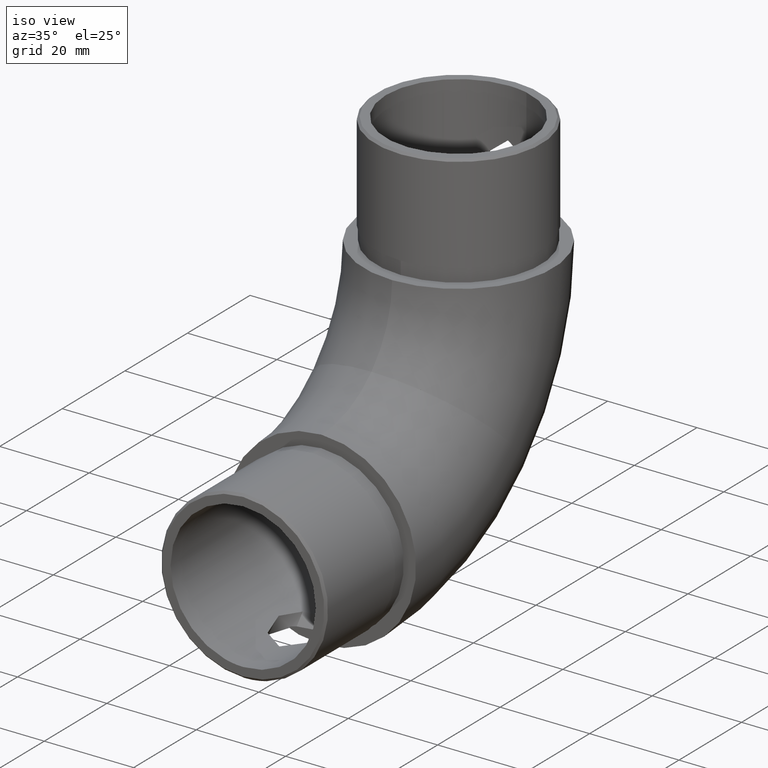
[diagram: clean part render]
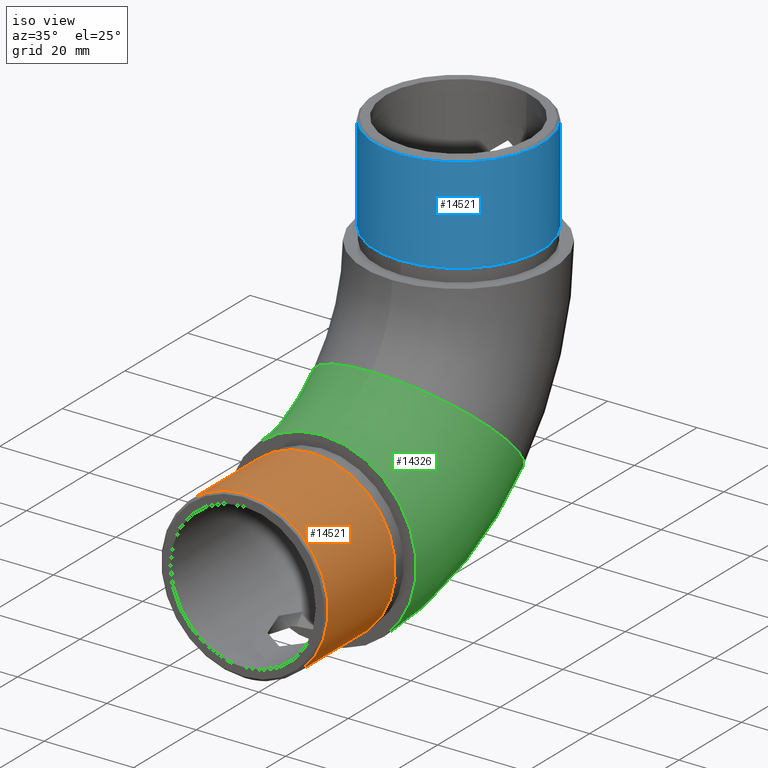
[diagram: same view with three faces highlighted in distinct colors, each labeled with its STEP entity id]
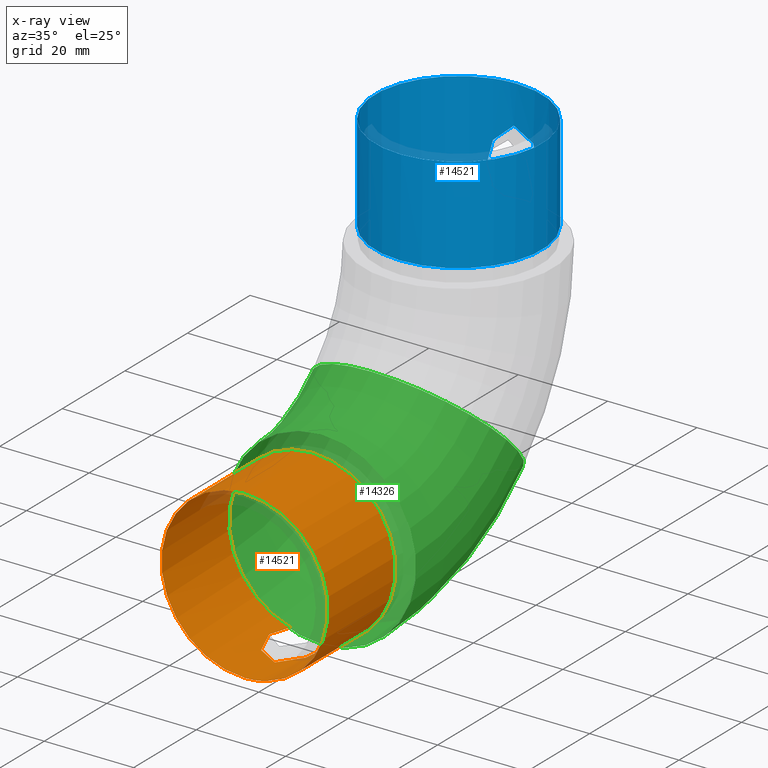
[diagram: x-ray of the same camera — body ghosted, the three highlighted faces saturated]
A machine part, iso view with three faces highlighted in distinct colors.
The next image is the same camera in x-ray (body ghosted, the three faces saturated) — at least one of them is partly hidden behind the body in this view.
Their STEP definitions:

[orange] entity #14521 — the highlighted cylindrical surface (bore or boss wall) has radius 18.65 mm, axis along (0, 1, 0).
#6 = VERTEX_POINT ( 'NONE', #4660 ) ;
#277 = DIRECTION ( 'NONE',  ( 0.0000000000000000000, 0.0000000000000000000, -1.000000000000000000 ) ) ;
#474 = CIRCLE ( 'NONE', #1757, 18.64999999999999900 ) ;
#774 = CARTESIAN_POINT ( 'NONE',  ( -5.790677185453956700, -9.461693139043250200, -17.72853038604039700 ) ) ;
#900 = CARTESIAN_POINT ( 'NONE',  ( -6.004849232121167700, -7.130516968725710400, -17.65685529642833300 ) ) ;
#958 = CARTESIAN_POINT ( 'NONE',  ( -5.942852978494347100, -6.134494595833762000, -17.67789175960240700 ) ) ;
#1152 = CARTESIAN_POINT ( 'NONE',  ( 5.626471513153692400, -10.09433060045608400, -17.78121767667432400 ) ) ;
#1272 = CARTESIAN_POINT ( 'NONE',  ( 5.841453206432585300, -5.474103332511540500, -17.71165676666914400 ) ) ;
#1337 = CARTESIAN_POINT ( 'NONE',  ( 4.321121082630329900, -13.13558257604128000, -18.14556495148407900 ) ) ;
#1757 = AXIS2_PLACEMENT_3D ( 'NONE', #14232, #17078, #277 ) ;
#2103 = DIRECTION ( 'NONE',  ( -0.0000000000000000000, 1.000000000000000000, 0.0000000000000000000 ) ) ;
#2236 = CIRCLE ( 'NONE', #10883, 18.64999999999999900 ) ;
#2255 = CARTESIAN_POINT ( 'NONE',  ( -5.244792993793314700, -3.569108964310377700, -17.90108790007638400 ) ) ;
#2318 = CARTESIAN_POINT ( 'NONE',  ( -4.473373668072879300, -12.85825524376494800, -18.10631985227465500 ) ) ;
#2382 = CARTESIAN_POINT ( 'NONE',  ( -5.974707160370271300, -6.465868964634419000, -17.66707750612237900 ) ) ;
#2697 = CARTESIAN_POINT ( 'NONE',  ( 5.942950261718086900, -6.135252937085535800, -17.67785912292502800 ) ) ;
#2744 = DIRECTION ( 'NONE',  ( 0.0000000000000000000, 1.000000000000000000, 0.0000000000000000000 ) ) ;
#3606 = CARTESIAN_POINT ( 'NONE',  ( -4.939913929214207600, -11.98306957947809300, -17.98440236260606900 ) ) ;
#4029 = CARTESIAN_POINT ( 'NONE',  ( 1.327159189066079200, -15.68645720442835100, -18.60337763575124000 ) ) ;
#4095 = CARTESIAN_POINT ( 'NONE',  ( 1.168316778614997100, -15.73961627757602200, -18.61407518019354200 ) ) ;
#4158 = CARTESIAN_POINT ( 'NONE',  ( 5.984028909698522200, -8.121099836711469100, -17.66419976884776900 ) ) ;
#4660 = CARTESIAN_POINT ( 'NONE',  ( 0.0000000000000000000, -24.50000000000001100, -18.64999999999999900 ) ) ;
#5083 = CARTESIAN_POINT ( 'NONE',  ( -3.706481937885172800, -13.94311861113800800, -18.27941630987184100 ) ) ;
#5262 = CARTESIAN_POINT ( 'NONE',  ( -5.771066988118038300, -5.142613042321402300, -17.73488632475578400 ) ) ;
#5321 = CARTESIAN_POINT ( 'NONE',  ( 5.227114922649276400, -11.35563188723252100, -17.90380816657120300 ) ) ;
#5450 = CARTESIAN_POINT ( 'NONE',  ( 2.511559563170317600, -15.06670748850021500, -18.48197263604583500 ) ) ;
#5537 = EDGE_CURVE ( 'NONE', #17546, #16899, #11127, .T. ) ;
#5561 = CARTESIAN_POINT ( 'NONE',  ( 3.030121264607642800, -14.64888919951121700, -18.40406501511748900 ) ) ;
#6587 = CARTESIAN_POINT ( 'NONE',  ( -4.891148747746965100, -3.000000000000000000, -17.99719878001611000 ) ) ;
#6700 = CARTESIAN_POINT ( 'NONE',  ( 2.236238191977251200, -15.25287960215611200, -18.51782933698246600 ) ) ;
#6714 = CARTESIAN_POINT ( 'NONE',  ( 4.891148747746969500, -3.000000000000000000, -17.99719878001610600 ) ) ;
#6826 = CARTESIAN_POINT ( 'NONE',  ( 5.501612020996431000, -4.179380303287336700, -17.82106395152606000 ) ) ;
#6888 = CARTESIAN_POINT ( 'NONE',  ( 1.793017266422567400, -15.48957302178017900, -18.56420359814896400 ) ) ;
#7854 = CARTESIAN_POINT ( 'NONE',  ( -5.324355061338476200, -11.05829143811324800, -17.87416200710210700 ) ) ;
#8036 = CARTESIAN_POINT ( 'NONE',  ( -1.622609117718887300, -15.57845428872802500, -18.58165056250563700 ) ) ;
#8102 = CARTESIAN_POINT ( 'NONE',  ( 5.974669325527080400, -6.466000420006295700, -17.66709028131080600 ) ) ;
#8544 = FACE_OUTER_BOUND ( 'NONE', #16681, .T. ) ;
#8564 = CARTESIAN_POINT ( 'NONE',  ( -4.891148747746965100, -3.000000000000000000, -17.99719878001611000 ) ) ;
#9326 = CARTESIAN_POINT ( 'NONE',  ( -5.205048450816677900, -11.37235602774064000, -17.90946533520211800 ) ) ;
#9388 = CARTESIAN_POINT ( 'NONE',  ( -5.501390394610129200, -4.178630456191827500, -17.82113442684032400 ) ) ;
#9451 = CARTESIAN_POINT ( 'NONE',  ( 6.019819766360434700, -7.458699042115691600, -17.65177838661190500 ) ) ;
#9512 = CARTESIAN_POINT ( 'NONE',  ( 5.771010737528315300, -5.142433164012434300, -17.73490411211239600 ) ) ;
#9934 = EDGE_LOOP ( 'NONE', ( #15423, #11074 ) ) ;
#9970 = ORIENTED_EDGE ( 'NONE', *, *, #13173, .T. ) ;
#10332 = DIRECTION ( 'NONE',  ( 0.0000000000000000000, 0.0000000000000000000, 1.000000000000000000 ) ) ;
#10538 = CARTESIAN_POINT ( 'NONE',  ( -4.793996505410635900, -12.28044542825460200, -18.02408078303007200 ) ) ;
#10857 = CARTESIAN_POINT ( 'NONE',  ( -1.311677552847934100, -15.70319985992123600, -18.60670899148463100 ) ) ;
#10883 = AXIS2_PLACEMENT_3D ( 'NONE', #11096, #2744, #12491 ) ;
#10922 = CARTESIAN_POINT ( 'NONE',  ( 0.3424592632891293500, -15.91594999639419900, -18.64984796656920800 ) ) ;
#10984 = CARTESIAN_POINT ( 'NONE',  ( 5.841308768002274800, -9.115509448016615200, -17.71169460394254000 ) ) ;
#11074 = ORIENTED_EDGE ( 'NONE', *, *, #14419, .T. ) ;
#11096 = CARTESIAN_POINT ( 'NONE',  ( 0.0000000000000000000, -24.50000000000001100, 0.0000000000000000000 ) ) ;
#11127 = B_SPLINE_CURVE_WITH_KNOTS ( 'NONE', 3,
 ( #6587, #2255, #9388, #5262, #17520, #958, #2382, #900, #14999, #16389, #12007, #774, #17651, #7854, #9326, #3606, #10538, #2318, #13405, #13346, #5083, #14810, #16200, #15126, #15248, #8036, #10857, #18014, #12380, #10922, #16447, #4095, #4029, #13778, #6888, #6700, #5450, #5561, #17770, #15189, #1337, #12316, #5321, #13836, #1152, #17836, #10984, #4158, #9451, #8102, #2697, #1272, #9512, #6826, #15309, #17893 ),
 .UNSPECIFIED., .F., .F.,
 ( 4, 2, 2, 2, 2, 2, 2, 2, 2, 2, 2, 2, 2, 2, 2, 2, 2, 2, 2, 2, 2, 2, 2, 2, 2, 2, 2, 4 ),
 ( 8.673617379884035500E-019, 0.001997902321562581900, 0.002996853482343870400, 0.003995804643125159400, 0.004994755803906450100, 0.005993706964687741700, 0.007991609286250325700, 0.008990560447031618200, 0.009989511607812910600, 0.01098846276859420000, 0.01198741392937549200, 0.01298636509015678500, 0.01398531625093807700, 0.01498426741171936900, 0.01598321857250066200, 0.01698216973328195100, 0.01748164531367259500, 0.01798112089406324300, 0.01898007205484453200, 0.01997902321562582500, 0.02197692553718841300, 0.02397482785875099800, 0.02497377901953228700, 0.02597273018031357900, 0.02797063250187616800, 0.02896958366265746000, 0.02996853482343875600, 0.03196643714500135200 ),
 .UNSPECIFIED. ) ;
#11177 = CYLINDRICAL_SURFACE ( 'NONE', #16367, 18.64999999999999900 ) ;
#12007 = CARTESIAN_POINT ( 'NONE',  ( -5.934650094995523000, -8.468332549562660500, -17.68063873927334100 ) ) ;
#12316 = CARTESIAN_POINT ( 'NONE',  ( 4.966799831345980500, -11.96598750024360800, -17.97955823302178000 ) ) ;
#12380 = CARTESIAN_POINT ( 'NONE',  ( -0.3256949123708592400, -15.91742048633220500, -18.65014826609198200 ) ) ;
#12491 = DIRECTION ( 'NONE',  ( 0.0000000000000000000, 0.0000000000000000000, -1.000000000000000000 ) ) ;
#13173 = EDGE_CURVE ( 'NONE', #6, #6, #2236, .T. ) ;
#13346 = CARTESIAN_POINT ( 'NONE',  ( -3.916048041116508800, -13.68030412546068300, -18.23528283451398500 ) ) ;
#13405 = CARTESIAN_POINT ( 'NONE',  ( -4.298703401610388200, -13.13870838259719800, -18.14888760723467000 ) ) ;
#13778 = CARTESIAN_POINT ( 'NONE',  ( 1.639286992822468500, -15.56161133611012900, -18.57847542525098900 ) ) ;
#13836 = CARTESIAN_POINT ( 'NONE',  ( 5.536797659209151200, -10.41334544233649200, -17.80949230048310700 ) ) ;
#14232 = CARTESIAN_POINT ( 'NONE',  ( 0.0000000000000000000, -3.000000000000000000, 0.0000000000000000000 ) ) ;
#14419 = EDGE_CURVE ( 'NONE', #16899, #17546, #474, .T. ) ;
#14521 = ADVANCED_FACE ( 'NONE', ( #8544, #15528 ), #11177, .T. ) ;
#14810 = CARTESIAN_POINT ( 'NONE',  ( -3.255982860875288300, -14.43387630998137000, -18.36501142376894100 ) ) ;
#14999 = CARTESIAN_POINT ( 'NONE',  ( -6.003118142627629400, -7.463791553186373700, -17.65744639434936000 ) ) ;
#15126 = CARTESIAN_POINT ( 'NONE',  ( -2.494993969129667200, -15.07854185179002600, -18.48422687191152000 ) ) ;
#15189 = CARTESIAN_POINT ( 'NONE',  ( 3.945214318237066900, -13.67963337675785800, -18.23362882605266200 ) ) ;
#15248 = CARTESIAN_POINT ( 'NONE',  ( -2.213088109873943700, -15.26720571701756600, -18.52060579446322900 ) ) ;
#15309 = CARTESIAN_POINT ( 'NONE',  ( 5.245210662980538200, -3.569781106671588800, -17.90097438896017600 ) ) ;
#15423 = ORIENTED_EDGE ( 'NONE', *, *, #5537, .T. ) ;
#15528 = FACE_OUTER_BOUND ( 'NONE', #9934, .T. ) ;
#16200 = CARTESIAN_POINT ( 'NONE',  ( -3.015106288482269000, -14.66241088441646500, -18.40654155531244700 ) ) ;
#16367 = AXIS2_PLACEMENT_3D ( 'NONE', #17376, #2103, #10332 ) ;
#16389 = CARTESIAN_POINT ( 'NONE',  ( -5.968159917496067600, -8.132122197835231600, -17.66929279294617000 ) ) ;
#16447 = CARTESIAN_POINT ( 'NONE',  ( 0.6828872220122790300, -15.86945999886565200, -18.64031117439767000 ) ) ;
#16681 = EDGE_LOOP ( 'NONE', ( #9970 ) ) ;
#16899 = VERTEX_POINT ( 'NONE', #6714 ) ;
#17078 = DIRECTION ( 'NONE',  ( 0.0000000000000000000, -1.000000000000000000, 0.0000000000000000000 ) ) ;
#17376 = CARTESIAN_POINT ( 'NONE',  ( 0.0000000000000000000, -24.99999999999999600, 0.0000000000000000000 ) ) ;
#17520 = CARTESIAN_POINT ( 'NONE',  ( -5.841398270015790900, -5.473870305524673800, -17.71167481745513300 ) ) ;
#17546 = VERTEX_POINT ( 'NONE', #8564 ) ;
#17651 = CARTESIAN_POINT ( 'NONE',  ( -5.637763792374252100, -10.10895977340000400, -17.77880244906071300 ) ) ;
#17770 = CARTESIAN_POINT ( 'NONE',  ( 3.274160085759045800, -14.41569064057777200, -18.36176012201969600 ) ) ;
#17836 = CARTESIAN_POINT ( 'NONE',  ( 5.778615086907725700, -9.446293287436542800, -17.73235718766593300 ) ) ;
#17893 = CARTESIAN_POINT ( 'NONE',  ( 4.891148747746969500, -3.000000000000000000, -17.99719878001610600 ) ) ;
#18014 = CARTESIAN_POINT ( 'NONE',  ( -0.6564894460998186300, -15.87445407927672000, -18.64132879125303800 ) ) ;

[blue] entity #14521 — the highlighted cylindrical surface (bore or boss wall) has radius 18.65 mm, axis along (0, -0, -1).
#6 = VERTEX_POINT ( 'NONE', #4660 ) ;
#277 = DIRECTION ( 'NONE',  ( 0.0000000000000000000, 0.0000000000000000000, -1.000000000000000000 ) ) ;
#474 = CIRCLE ( 'NONE', #1757, 18.64999999999999900 ) ;
#774 = CARTESIAN_POINT ( 'NONE',  ( -5.790677185453956700, -9.461693139043250200, -17.72853038604039700 ) ) ;
#900 = CARTESIAN_POINT ( 'NONE',  ( -6.004849232121167700, -7.130516968725710400, -17.65685529642833300 ) ) ;
#958 = CARTESIAN_POINT ( 'NONE',  ( -5.942852978494347100, -6.134494595833762000, -17.67789175960240700 ) ) ;
#1152 = CARTESIAN_POINT ( 'NONE',  ( 5.626471513153692400, -10.09433060045608400, -17.78121767667432400 ) ) ;
#1272 = CARTESIAN_POINT ( 'NONE',  ( 5.841453206432585300, -5.474103332511540500, -17.71165676666914400 ) ) ;
#1337 = CARTESIAN_POINT ( 'NONE',  ( 4.321121082630329900, -13.13558257604128000, -18.14556495148407900 ) ) ;
#1757 = AXIS2_PLACEMENT_3D ( 'NONE', #14232, #17078, #277 ) ;
#2103 = DIRECTION ( 'NONE',  ( -0.0000000000000000000, 1.000000000000000000, 0.0000000000000000000 ) ) ;
#2236 = CIRCLE ( 'NONE', #10883, 18.64999999999999900 ) ;
#2255 = CARTESIAN_POINT ( 'NONE',  ( -5.244792993793314700, -3.569108964310377700, -17.90108790007638400 ) ) ;
#2318 = CARTESIAN_POINT ( 'NONE',  ( -4.473373668072879300, -12.85825524376494800, -18.10631985227465500 ) ) ;
#2382 = CARTESIAN_POINT ( 'NONE',  ( -5.974707160370271300, -6.465868964634419000, -17.66707750612237900 ) ) ;
#2697 = CARTESIAN_POINT ( 'NONE',  ( 5.942950261718086900, -6.135252937085535800, -17.67785912292502800 ) ) ;
#2744 = DIRECTION ( 'NONE',  ( 0.0000000000000000000, 1.000000000000000000, 0.0000000000000000000 ) ) ;
#3606 = CARTESIAN_POINT ( 'NONE',  ( -4.939913929214207600, -11.98306957947809300, -17.98440236260606900 ) ) ;
#4029 = CARTESIAN_POINT ( 'NONE',  ( 1.327159189066079200, -15.68645720442835100, -18.60337763575124000 ) ) ;
#4095 = CARTESIAN_POINT ( 'NONE',  ( 1.168316778614997100, -15.73961627757602200, -18.61407518019354200 ) ) ;
#4158 = CARTESIAN_POINT ( 'NONE',  ( 5.984028909698522200, -8.121099836711469100, -17.66419976884776900 ) ) ;
#4660 = CARTESIAN_POINT ( 'NONE',  ( 0.0000000000000000000, -24.50000000000001100, -18.64999999999999900 ) ) ;
#5083 = CARTESIAN_POINT ( 'NONE',  ( -3.706481937885172800, -13.94311861113800800, -18.27941630987184100 ) ) ;
#5262 = CARTESIAN_POINT ( 'NONE',  ( -5.771066988118038300, -5.142613042321402300, -17.73488632475578400 ) ) ;
#5321 = CARTESIAN_POINT ( 'NONE',  ( 5.227114922649276400, -11.35563188723252100, -17.90380816657120300 ) ) ;
#5450 = CARTESIAN_POINT ( 'NONE',  ( 2.511559563170317600, -15.06670748850021500, -18.48197263604583500 ) ) ;
#5537 = EDGE_CURVE ( 'NONE', #17546, #16899, #11127, .T. ) ;
#5561 = CARTESIAN_POINT ( 'NONE',  ( 3.030121264607642800, -14.64888919951121700, -18.40406501511748900 ) ) ;
#6587 = CARTESIAN_POINT ( 'NONE',  ( -4.891148747746965100, -3.000000000000000000, -17.99719878001611000 ) ) ;
#6700 = CARTESIAN_POINT ( 'NONE',  ( 2.236238191977251200, -15.25287960215611200, -18.51782933698246600 ) ) ;
#6714 = CARTESIAN_POINT ( 'NONE',  ( 4.891148747746969500, -3.000000000000000000, -17.99719878001610600 ) ) ;
#6826 = CARTESIAN_POINT ( 'NONE',  ( 5.501612020996431000, -4.179380303287336700, -17.82106395152606000 ) ) ;
#6888 = CARTESIAN_POINT ( 'NONE',  ( 1.793017266422567400, -15.48957302178017900, -18.56420359814896400 ) ) ;
#7854 = CARTESIAN_POINT ( 'NONE',  ( -5.324355061338476200, -11.05829143811324800, -17.87416200710210700 ) ) ;
#8036 = CARTESIAN_POINT ( 'NONE',  ( -1.622609117718887300, -15.57845428872802500, -18.58165056250563700 ) ) ;
#8102 = CARTESIAN_POINT ( 'NONE',  ( 5.974669325527080400, -6.466000420006295700, -17.66709028131080600 ) ) ;
#8544 = FACE_OUTER_BOUND ( 'NONE', #16681, .T. ) ;
#8564 = CARTESIAN_POINT ( 'NONE',  ( -4.891148747746965100, -3.000000000000000000, -17.99719878001611000 ) ) ;
#9326 = CARTESIAN_POINT ( 'NONE',  ( -5.205048450816677900, -11.37235602774064000, -17.90946533520211800 ) ) ;
#9388 = CARTESIAN_POINT ( 'NONE',  ( -5.501390394610129200, -4.178630456191827500, -17.82113442684032400 ) ) ;
#9451 = CARTESIAN_POINT ( 'NONE',  ( 6.019819766360434700, -7.458699042115691600, -17.65177838661190500 ) ) ;
#9512 = CARTESIAN_POINT ( 'NONE',  ( 5.771010737528315300, -5.142433164012434300, -17.73490411211239600 ) ) ;
#9934 = EDGE_LOOP ( 'NONE', ( #15423, #11074 ) ) ;
#9970 = ORIENTED_EDGE ( 'NONE', *, *, #13173, .T. ) ;
#10332 = DIRECTION ( 'NONE',  ( 0.0000000000000000000, 0.0000000000000000000, 1.000000000000000000 ) ) ;
#10538 = CARTESIAN_POINT ( 'NONE',  ( -4.793996505410635900, -12.28044542825460200, -18.02408078303007200 ) ) ;
#10857 = CARTESIAN_POINT ( 'NONE',  ( -1.311677552847934100, -15.70319985992123600, -18.60670899148463100 ) ) ;
#10883 = AXIS2_PLACEMENT_3D ( 'NONE', #11096, #2744, #12491 ) ;
#10922 = CARTESIAN_POINT ( 'NONE',  ( 0.3424592632891293500, -15.91594999639419900, -18.64984796656920800 ) ) ;
#10984 = CARTESIAN_POINT ( 'NONE',  ( 5.841308768002274800, -9.115509448016615200, -17.71169460394254000 ) ) ;
#11074 = ORIENTED_EDGE ( 'NONE', *, *, #14419, .T. ) ;
#11096 = CARTESIAN_POINT ( 'NONE',  ( 0.0000000000000000000, -24.50000000000001100, 0.0000000000000000000 ) ) ;
#11127 = B_SPLINE_CURVE_WITH_KNOTS ( 'NONE', 3,
 ( #6587, #2255, #9388, #5262, #17520, #958, #2382, #900, #14999, #16389, #12007, #774, #17651, #7854, #9326, #3606, #10538, #2318, #13405, #13346, #5083, #14810, #16200, #15126, #15248, #8036, #10857, #18014, #12380, #10922, #16447, #4095, #4029, #13778, #6888, #6700, #5450, #5561, #17770, #15189, #1337, #12316, #5321, #13836, #1152, #17836, #10984, #4158, #9451, #8102, #2697, #1272, #9512, #6826, #15309, #17893 ),
 .UNSPECIFIED., .F., .F.,
 ( 4, 2, 2, 2, 2, 2, 2, 2, 2, 2, 2, 2, 2, 2, 2, 2, 2, 2, 2, 2, 2, 2, 2, 2, 2, 2, 2, 4 ),
 ( 8.673617379884035500E-019, 0.001997902321562581900, 0.002996853482343870400, 0.003995804643125159400, 0.004994755803906450100, 0.005993706964687741700, 0.007991609286250325700, 0.008990560447031618200, 0.009989511607812910600, 0.01098846276859420000, 0.01198741392937549200, 0.01298636509015678500, 0.01398531625093807700, 0.01498426741171936900, 0.01598321857250066200, 0.01698216973328195100, 0.01748164531367259500, 0.01798112089406324300, 0.01898007205484453200, 0.01997902321562582500, 0.02197692553718841300, 0.02397482785875099800, 0.02497377901953228700, 0.02597273018031357900, 0.02797063250187616800, 0.02896958366265746000, 0.02996853482343875600, 0.03196643714500135200 ),
 .UNSPECIFIED. ) ;
#11177 = CYLINDRICAL_SURFACE ( 'NONE', #16367, 18.64999999999999900 ) ;
#12007 = CARTESIAN_POINT ( 'NONE',  ( -5.934650094995523000, -8.468332549562660500, -17.68063873927334100 ) ) ;
#12316 = CARTESIAN_POINT ( 'NONE',  ( 4.966799831345980500, -11.96598750024360800, -17.97955823302178000 ) ) ;
#12380 = CARTESIAN_POINT ( 'NONE',  ( -0.3256949123708592400, -15.91742048633220500, -18.65014826609198200 ) ) ;
#12491 = DIRECTION ( 'NONE',  ( 0.0000000000000000000, 0.0000000000000000000, -1.000000000000000000 ) ) ;
#13173 = EDGE_CURVE ( 'NONE', #6, #6, #2236, .T. ) ;
#13346 = CARTESIAN_POINT ( 'NONE',  ( -3.916048041116508800, -13.68030412546068300, -18.23528283451398500 ) ) ;
#13405 = CARTESIAN_POINT ( 'NONE',  ( -4.298703401610388200, -13.13870838259719800, -18.14888760723467000 ) ) ;
#13778 = CARTESIAN_POINT ( 'NONE',  ( 1.639286992822468500, -15.56161133611012900, -18.57847542525098900 ) ) ;
#13836 = CARTESIAN_POINT ( 'NONE',  ( 5.536797659209151200, -10.41334544233649200, -17.80949230048310700 ) ) ;
#14232 = CARTESIAN_POINT ( 'NONE',  ( 0.0000000000000000000, -3.000000000000000000, 0.0000000000000000000 ) ) ;
#14419 = EDGE_CURVE ( 'NONE', #16899, #17546, #474, .T. ) ;
#14521 = ADVANCED_FACE ( 'NONE', ( #8544, #15528 ), #11177, .T. ) ;
#14810 = CARTESIAN_POINT ( 'NONE',  ( -3.255982860875288300, -14.43387630998137000, -18.36501142376894100 ) ) ;
#14999 = CARTESIAN_POINT ( 'NONE',  ( -6.003118142627629400, -7.463791553186373700, -17.65744639434936000 ) ) ;
#15126 = CARTESIAN_POINT ( 'NONE',  ( -2.494993969129667200, -15.07854185179002600, -18.48422687191152000 ) ) ;
#15189 = CARTESIAN_POINT ( 'NONE',  ( 3.945214318237066900, -13.67963337675785800, -18.23362882605266200 ) ) ;
#15248 = CARTESIAN_POINT ( 'NONE',  ( -2.213088109873943700, -15.26720571701756600, -18.52060579446322900 ) ) ;
#15309 = CARTESIAN_POINT ( 'NONE',  ( 5.245210662980538200, -3.569781106671588800, -17.90097438896017600 ) ) ;
#15423 = ORIENTED_EDGE ( 'NONE', *, *, #5537, .T. ) ;
#15528 = FACE_OUTER_BOUND ( 'NONE', #9934, .T. ) ;
#16200 = CARTESIAN_POINT ( 'NONE',  ( -3.015106288482269000, -14.66241088441646500, -18.40654155531244700 ) ) ;
#16367 = AXIS2_PLACEMENT_3D ( 'NONE', #17376, #2103, #10332 ) ;
#16389 = CARTESIAN_POINT ( 'NONE',  ( -5.968159917496067600, -8.132122197835231600, -17.66929279294617000 ) ) ;
#16447 = CARTESIAN_POINT ( 'NONE',  ( 0.6828872220122790300, -15.86945999886565200, -18.64031117439767000 ) ) ;
#16681 = EDGE_LOOP ( 'NONE', ( #9970 ) ) ;
#16899 = VERTEX_POINT ( 'NONE', #6714 ) ;
#17078 = DIRECTION ( 'NONE',  ( 0.0000000000000000000, -1.000000000000000000, 0.0000000000000000000 ) ) ;
#17376 = CARTESIAN_POINT ( 'NONE',  ( 0.0000000000000000000, -24.99999999999999600, 0.0000000000000000000 ) ) ;
#17520 = CARTESIAN_POINT ( 'NONE',  ( -5.841398270015790900, -5.473870305524673800, -17.71167481745513300 ) ) ;
#17546 = VERTEX_POINT ( 'NONE', #8564 ) ;
#17651 = CARTESIAN_POINT ( 'NONE',  ( -5.637763792374252100, -10.10895977340000400, -17.77880244906071300 ) ) ;
#17770 = CARTESIAN_POINT ( 'NONE',  ( 3.274160085759045800, -14.41569064057777200, -18.36176012201969600 ) ) ;
#17836 = CARTESIAN_POINT ( 'NONE',  ( 5.778615086907725700, -9.446293287436542800, -17.73235718766593300 ) ) ;
#17893 = CARTESIAN_POINT ( 'NONE',  ( 4.891148747746969500, -3.000000000000000000, -17.99719878001610600 ) ) ;
#18014 = CARTESIAN_POINT ( 'NONE',  ( -0.6564894460998186300, -15.87445407927672000, -18.64132879125303800 ) ) ;

[green] entity #14326 — the highlighted toroidal blend (fillet) surface has major radius 43.8 mm and minor (blend) radius 21.2 mm.
#489 = CARTESIAN_POINT ( 'NONE',  ( 0.0000000000000000000, 15.98061325481589500, 27.81938674518394400 ) ) ;
#861 = EDGE_LOOP ( 'NONE', ( #9286 ) ) ;
#953 = DIRECTION ( 'NONE',  ( -1.000000000000000000, -0.0000000000000000000, -0.0000000000000000000 ) ) ;
#1107 = DIRECTION ( 'NONE',  ( 0.0000000000000000000, 1.000000000000000000, 0.0000000000000000000 ) ) ;
#3509 = VERTEX_POINT ( 'NONE', #489 ) ;
#4084 = DIRECTION ( 'NONE',  ( 0.0000000000000000000, 0.7071067811865513500, 0.7071067811865436900 ) ) ;
#4839 = CARTESIAN_POINT ( 'NONE',  ( 0.0000000000000000000, 0.0000000000000000000, 21.19999999999999900 ) ) ;
#4854 = TOROIDAL_SURFACE ( 'NONE', #7606, 43.80000000000001100, 21.19999999999999900 ) ;
#5151 = CARTESIAN_POINT ( 'NONE',  ( 0.0000000000000000000, 0.0000000000000000000, 0.0000000000000000000 ) ) ;
#5484 = VERTEX_POINT ( 'NONE', #4839 ) ;
#6638 = CARTESIAN_POINT ( 'NONE',  ( 0.0000000000000000000, -6.938893903907228400E-015, 43.80000000000000400 ) ) ;
#6790 = CIRCLE ( 'NONE', #6923, 21.19999999999999600 ) ;
#6923 = AXIS2_PLACEMENT_3D ( 'NONE', #9682, #4084, #6939 ) ;
#6938 = EDGE_CURVE ( 'NONE', #5484, #5484, #8925, .T. ) ;
#6939 = DIRECTION ( 'NONE',  ( 0.0000000000000000000, -0.7071067811865438000, 0.7071067811865513500 ) ) ;
#7606 = AXIS2_PLACEMENT_3D ( 'NONE', #6638, #953, #16321 ) ;
#8120 = DIRECTION ( 'NONE',  ( 0.0000000000000000000, 0.0000000000000000000, 1.000000000000000000 ) ) ;
#8925 = CIRCLE ( 'NONE', #15852, 21.19999999999999900 ) ;
#9111 = EDGE_LOOP ( 'NONE', ( #12671 ) ) ;
#9286 = ORIENTED_EDGE ( 'NONE', *, *, #6938, .T. ) ;
#9682 = CARTESIAN_POINT ( 'NONE',  ( 0.0000000000000000000, 30.97127701597061700, 12.82872298402905600 ) ) ;
#9869 = FACE_OUTER_BOUND ( 'NONE', #861, .T. ) ;
#12671 = ORIENTED_EDGE ( 'NONE', *, *, #15833, .F. ) ;
#14326 = ADVANCED_FACE ( 'NONE', ( #16830, #9869 ), #4854, .T. ) ;
#15833 = EDGE_CURVE ( 'NONE', #3509, #3509, #6790, .T. ) ;
#15852 = AXIS2_PLACEMENT_3D ( 'NONE', #5151, #1107, #8120 ) ;
#16321 = DIRECTION ( 'NONE',  ( 0.0000000000000000000, 0.0000000000000000000, 1.000000000000000000 ) ) ;
#16830 = FACE_OUTER_BOUND ( 'NONE', #9111, .T. ) ;